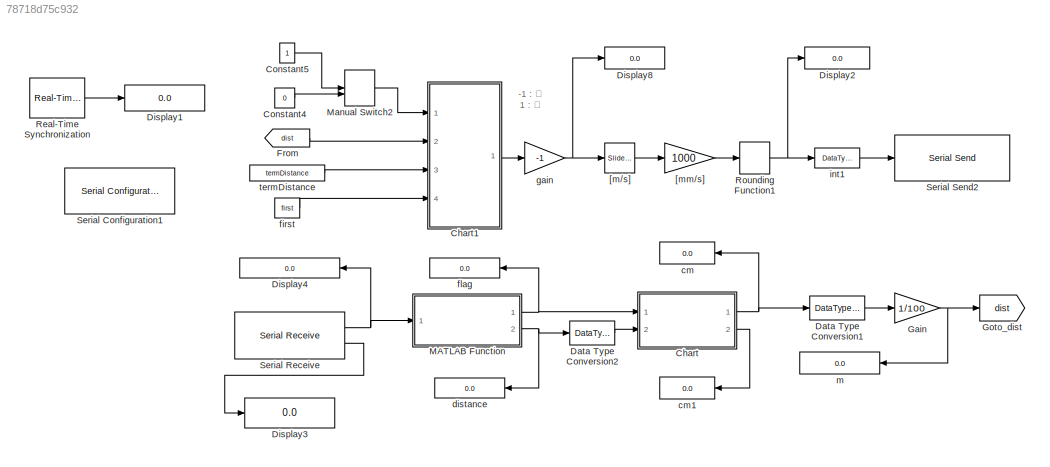
MODEL slx_78718d75c932
KIND model
CONFIG AbsTol = auto
CONFIG EnableMultiTasking = off
CONFIG FixedStep = auto
CONFIG MaxStep = auto
CONFIG MinStep = auto
CONFIG RelTol = 1e-3
CONFIG SampleTimeConstraint = Unconstrained
CONFIG Solver = VariableStepAuto
CONFIG SolverName = VariableStepAuto
CONFIG StartTime = 0.0
CONFIG StopTime = inf
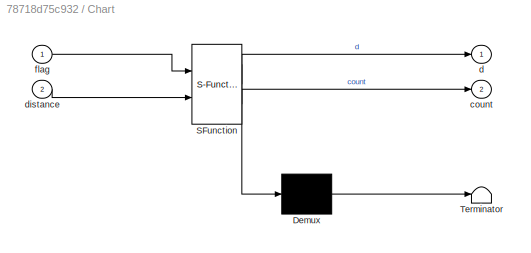
BLOCK [SubSystem] Chart
  ErrorFcn = Stateflow.Translate.translate
  PermitHierarchicalResolution = ExplicitOnly
  Ports = [2, 2]
  RequestExecContextInheritance = off
  SFBlockType = Chart
  TreatAsAtomicUnit = on
BLOCK [Demux] Chart/ Demux 
  Outputs = 1
  Ports = [1, 1]
BLOCK [S-Function] Chart/ SFunction 
  EnableBusSupport = off
  FunctionName = sf_sfun
  PortCounts = [2 3]
  Ports = [2, 3]
  SFcnIsStateOwnerBlock = off
  SFunctionDeploymentMode = off
  Tag = Stateflow S-Function test_Cart_ver6 2
BLOCK [Terminator] Chart/ Terminator 
BLOCK [Outport] Chart/count
  IconDisplay = Port number
  Port = 2
BLOCK [Outport] Chart/d
  IconDisplay = Port number
BLOCK [Inport] Chart/distance
  IconDisplay = Port number
  Port = 2
BLOCK [Inport] Chart/flag
  IconDisplay = Port number
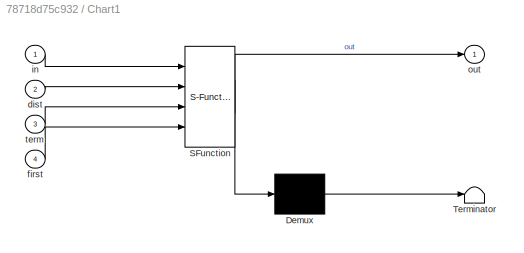
BLOCK [SubSystem] Chart1
  ErrorFcn = Stateflow.Translate.translate
  PermitHierarchicalResolution = ExplicitOnly
  Ports = [4, 1]
  RequestExecContextInheritance = off
  SFBlockType = Chart
  TreatAsAtomicUnit = on
BLOCK [Demux] Chart1/ Demux 
  Outputs = 1
  Ports = [1, 1]
BLOCK [S-Function] Chart1/ SFunction 
  EnableBusSupport = off
  FunctionName = sf_sfun
  PortCounts = [4 2]
  Ports = [4, 2]
  SFcnIsStateOwnerBlock = off
  SFunctionDeploymentMode = off
  Tag = Stateflow S-Function test_Cart_ver6 1
BLOCK [Terminator] Chart1/ Terminator 
BLOCK [Inport] Chart1/dist
  IconDisplay = Port number
  Port = 2
BLOCK [Inport] Chart1/first
  IconDisplay = Port number
  Port = 4
BLOCK [Inport] Chart1/in
  IconDisplay = Port number
BLOCK [Outport] Chart1/out
  IconDisplay = Port number
BLOCK [Inport] Chart1/term
  IconDisplay = Port number
  Port = 3
BLOCK [Constant] Constant4
  SampleTime = 1
  Value = 0
BLOCK [Constant] Constant5
  SampleTime = 1
BLOCK [DataTypeConversion] Data Type Conversion1
  OutDataTypeStr = double
  RndMeth = Floor
  SaturateOnIntegerOverflow = off
BLOCK [DataTypeConversion] Data Type Conversion2
  OutDataTypeStr = double
  RndMeth = Floor
  SaturateOnIntegerOverflow = off
BLOCK [Display] Display1
  Commented = on
  Decimation = 1
  Ports = [1]
BLOCK [Display] Display2
  Decimation = 1
  Format = long
  Ports = [1]
BLOCK [Display] Display3
  Decimation = 1
  Ports = [1]
BLOCK [Display] Display4
  Decimation = 1
  Format = long
  Ports = [1]
BLOCK [Display] Display8
  Decimation = 1
  Format = long
  Ports = [1]
BLOCK [From] From
  GotoTag = dist
BLOCK [Gain] Gain
  Gain = 1/100
  OutDataTypeStr = Inherit: Inherit via internal rule
  ParamDataTypeStr = Inherit: Inherit via internal rule
  SaturateOnIntegerOverflow = off
BLOCK [Goto] Goto_dist
  GotoTag = dist
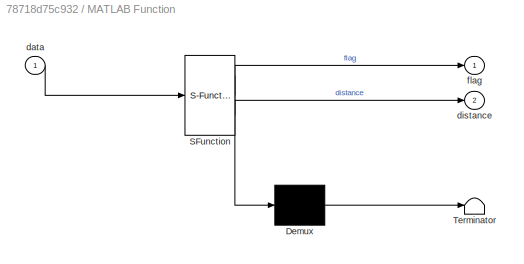
BLOCK [SubSystem] MATLAB Function
  ErrorFcn = Stateflow.Translate.translate
  PermitHierarchicalResolution = ExplicitOnly
  Ports = [1, 2]
  RequestExecContextInheritance = off
  SFBlockType = MATLAB Function
  TreatAsAtomicUnit = on
BLOCK [Demux] MATLAB Function/ Demux 
  Outputs = 1
  Ports = [1, 1]
BLOCK [S-Function] MATLAB Function/ SFunction 
  EnableBusSupport = off
  FunctionName = sf_sfun
  PortCounts = [1 3]
  Ports = [1, 3]
  SFcnIsStateOwnerBlock = off
  SFunctionDeploymentMode = off
  Tag = Stateflow S-Function test_Cart_ver6 3
BLOCK [Terminator] MATLAB Function/ Terminator 
BLOCK [Inport] MATLAB Function/data
  IconDisplay = Port number
BLOCK [Outport] MATLAB Function/distance
  IconDisplay = Port number
  Port = 2
BLOCK [Outport] MATLAB Function/flag
  IconDisplay = Port number
BLOCK [ManualSwitch] Manual Switch2
  CurrentSetting = 0
BLOCK [Reference] Real-Time Synchronization  REF=sldrtlib/Real-Time
Synchronization
  Commented = on
  Ports = [0, 1]
  SourceBlock = sldrtlib/Real-Time\nSynchronization
  SourceProductBaseCode = WT
  SourceProductName = Simulink Desktop Real-Time
  SourceType = Simulink Desktop Real-Time Synchronization
BLOCK [Rounding] Rounding Function1
  Operator = round
BLOCK [Reference] Serial Configuration1  REF=instrumentlib/Serial Configuration
  Ports = []
  Priority = -200000
  SourceBlock = instrumentlib/Serial Configuration
  SourceProductBaseCode = IC
  SourceProductName = Instrument Control Toolbox
  SourceType = Serial Configuration
BLOCK [Reference] Serial Receive  REF=instrumentlib/Serial Receive
  Ports = [0, 2]
  SourceBlock = instrumentlib/Serial Receive
  SourceProductBaseCode = IC
  SourceProductName = Instrument Control Toolbox
  SourceType = Serial Receive
BLOCK [Reference] Serial Send2  REF=instrumentlib/Serial Send
  Ports = [1]
  SourceBlock = instrumentlib/Serial Send
  SourceProductBaseCode = IC
  SourceProductName = Instrument Control Toolbox
  SourceType = Serial Send
BLOCK [Reference] [m//s]  REF=simulink/Math
Operations/Slider
Gain
  Ports = [1, 1]
  SourceBlock = simulink/Math\nOperations/Slider\nGain
  SourceProductBaseCode = SL
  SourceProductName = Simulink
  SourceType = Slider Gain
BLOCK [Gain] [mm//s]
  Gain = 1000
  OutDataTypeStr = Inherit: Inherit via internal rule
  ParamDataTypeStr = Inherit: Inherit via internal rule
  SaturateOnIntegerOverflow = off
BLOCK [Display] cm
  Decimation = 1
  Format = long
  Ports = [1]
BLOCK [Display] cm1
  Decimation = 1
  Format = long
  Ports = [1]
BLOCK [Display] distance
  Decimation = 1
  Format = long
  Ports = [1]
BLOCK [Constant] first
  SampleTime = 1
  Value = first
BLOCK [Display] flag
  Decimation = 1
  Format = long
  Ports = [1]
BLOCK [Gain] gain
  Gain = -1
  OutDataTypeStr = Inherit: Inherit via internal rule
  ParamDataTypeStr = Inherit: Inherit via internal rule
  SaturateOnIntegerOverflow = off
BLOCK [DataTypeConversion] int1
  OutDataTypeStr = int8
  RndMeth = Floor
  SaturateOnIntegerOverflow = off
BLOCK [Display] m
  Decimation = 1
  Format = long
  Ports = [1]
BLOCK [Constant] termDistance
  SampleTime = 1
  Value = termDistance
ANNOTATION (root): -1 : 右 1 : 左
LINE Chart1:1 -> gain:1
NET Chart:1 -> Data Type Conversion1:1, cm:1
LINE Chart:2 -> cm1:1
LINE Constant4:1 -> Manual Switch2:2
LINE Constant5:1 -> Manual Switch2:1
LINE Data Type Conversion1:1 -> Gain:1
LINE Data Type Conversion2:1 -> Chart:2
LINE From:1 -> Chart1:2
NET Gain:1 -> Goto_dist:1, m:1
NET MATLAB Function:1 -> Chart:1, flag:1
NET MATLAB Function:2 -> Data Type Conversion2:1, distance:1
LINE Manual Switch2:1 -> Chart1:1
LINE Real-Time Synchronization:1 -> Display1:1
NET Rounding Function1:1 -> Display2:1, int1:1
NET Serial Receive:1 -> Display4:1, MATLAB Function:1
LINE Serial Receive:2 -> Display3:1
LINE [m//s]:1 -> [mm//s]:1
LINE [mm//s]:1 -> Rounding Function1:1
LINE first:1 -> Chart1:4
NET gain:1 -> Display8:1, [m//s]:1
LINE int1:1 -> Serial Send2:1
LINE termDistance:1 -> Chart1:3
note: NET lines group one-source signal fan-out (src -> all destinations, sorted); 1:1 wires keep LINE
CHART Chart1 states=4 transitions=7
  STATE_LABEL 'CartWait/\nentry:out=0;\n'
  STATE_LABEL 'CartGo1/\nentry:out=0;'
  STATE_LABEL 'CartGo3/\nentry:\nflag=flag*-1;\nt=t+term;'
  STATE_LABEL 'CartGo2/\nentry:out=flag;'
CHART Chart states=2 transitions=3
  STATE_LABEL 'mode0/'
  STATE_LABEL 'mode1/\nentry:\ncount = count;\nd = (count * 127) + distance;\nduring:\nd = distance + count * 126;\ncount = count;'
CHART MATLAB Function states=1 transitions=1
  STATE_LABEL 'eML_blk_kernel()'
  STATE_LABEL 'SCRIPT:\nfunction [flag,distance] = fcn(data)\n\n% 入力(data)を右に7bitシフトして、上位1bitを取り出す\nflag = uint8(bitshift(data,-7));\n\n% 入力(data)と127(01111111)のAND演算をして、下位7bitを取り出す\ndistance = uint8( bitand(data, 127));\n\n'
